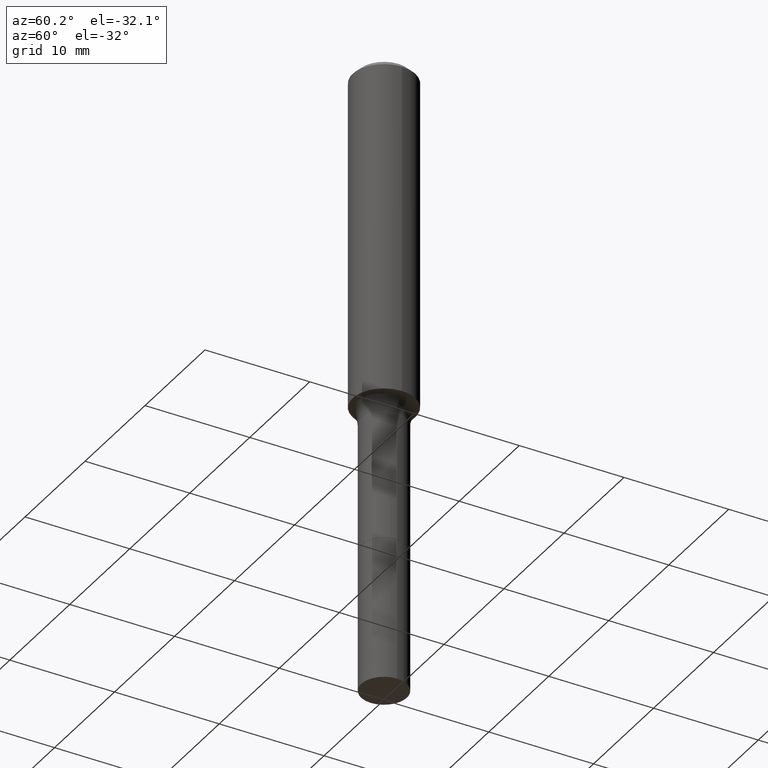
[diagram: clean part render]
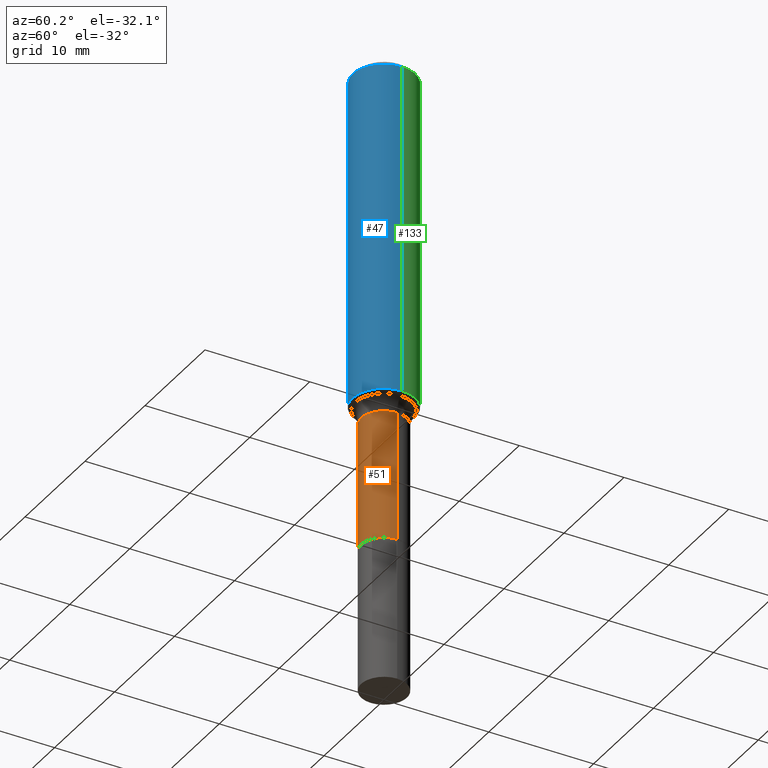
[diagram: same view with three faces highlighted in distinct colors, each labeled with its STEP entity id]
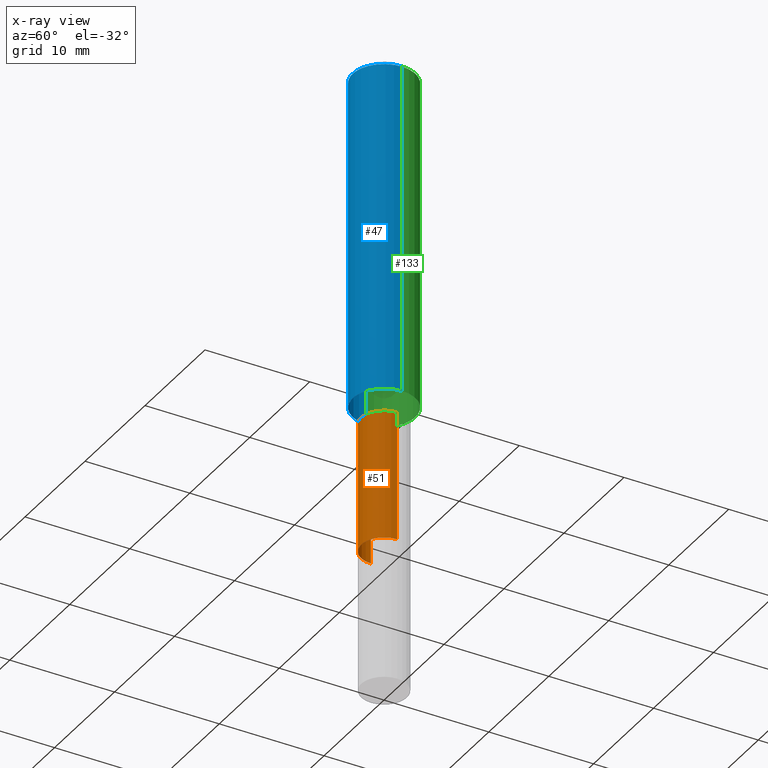
[diagram: x-ray of the same camera — body ghosted, the three highlighted faces saturated]
A machine part, auxiliary view with three faces highlighted in distinct colors.
The next image is the same camera in x-ray (body ghosted, the three faces saturated) — at least one of them is partly hidden behind the body in this view.
Their STEP definitions:

[orange] entity #51 — the highlighted cylindrical surface (edge-blend (fillet) strip) has radius 2.1831 mm, axis along (-0, 0, 1).
#2 = CYLINDRICAL_SURFACE ( 'NONE', #323, 0.08594999999999995699 ) ;
#8 = DIRECTION ( 'NONE',  ( 1.000000000000000000, -6.982962677686266711E-15, 0.000000000000000000 ) ) ;
#22 = ORIENTED_EDGE ( 'NONE', *, *, #395, .F. ) ;
#36 = CARTESIAN_POINT ( 'NONE',  ( -0.08594999999999998475, -4.912637422597106570E-15, -1.825700000000000101 ) ) ;
#48 = DIRECTION ( 'NONE',  ( -2.445468806185136597E-29, 3.491481338843145583E-15, 1.000000000000000000 ) ) ;
#51 = ADVANCED_FACE ( 'NONE', ( #197 ), #2, .T. ) ;
#56 = EDGE_LOOP ( 'NONE', ( #22, #382, #345, #153 ) ) ;
#60 = DIRECTION ( 'NONE',  ( -2.445468806185136597E-29, 3.491481338843145583E-15, 1.000000000000000000 ) ) ;
#88 = DIRECTION ( 'NONE',  ( -2.445468806185136597E-29, 3.491481338843145583E-15, 1.000000000000000000 ) ) ;
#92 = CARTESIAN_POINT ( 'NONE',  ( 0.08594999999999992923, -5.272485969787030971E-15, -1.338200000000000056 ) ) ;
#115 = CARTESIAN_POINT ( 'NONE',  ( 0.000000000000000000, 0.000000000000000000, 0.000000000000000000 ) ) ;
#147 = CARTESIAN_POINT ( 'NONE',  ( -0.08594999999999995699, 6.107114813858058042E-16, -4.227824710074089488E-30 ) ) ;
#153 = ORIENTED_EDGE ( 'NONE', *, *, #482, .F. ) ;
#157 = EDGE_CURVE ( 'NONE', #388, #301, #390, .T. ) ;
#169 = CARTESIAN_POINT ( 'NONE',  ( 0.08594999999999998475, -6.974583122473064793E-15, -1.825700000000000101 ) ) ;
#180 = DIRECTION ( 'NONE',  ( -2.445468806185136877E-29, 3.491481338843145188E-15, 1.000000000000000000 ) ) ;
#197 = FACE_OUTER_BOUND ( 'NONE', #56, .T. ) ;
#222 = CARTESIAN_POINT ( 'NONE',  ( -0.08594999999999992923, -4.912637422597108147E-15, -1.338200000000000056 ) ) ;
#231 = AXIS2_PLACEMENT_3D ( 'NONE', #333, #60, #8 ) ;
#233 = DIRECTION ( 'NONE',  ( -2.445468806185136877E-29, 3.491481338843145188E-15, 1.000000000000000000 ) ) ;
#242 = DIRECTION ( 'NONE',  ( 1.000000000000000000, -6.982962677686261977E-15, 0.000000000000000000 ) ) ;
#257 = VERTEX_POINT ( 'NONE', #222 ) ;
#262 = LINE ( 'NONE', #147, #434 ) ;
#266 = CIRCLE ( 'NONE', #231, 0.08594999999999992923 ) ;
#271 = VERTEX_POINT ( 'NONE', #92 ) ;
#301 = VERTEX_POINT ( 'NONE', #169 ) ;
#310 = CARTESIAN_POINT ( 'NONE',  ( 0.08594999999999995699, -6.001856421471342262E-16, 4.191073938796604437E-30 ) ) ;
#315 = CARTESIAN_POINT ( 'NONE',  ( 4.464692399452204323E-29, -6.374397480325931355E-15, -1.825700000000000101 ) ) ;
#323 = AXIS2_PLACEMENT_3D ( 'NONE', #115, #88, #446 ) ;
#324 = AXIS2_PLACEMENT_3D ( 'NONE', #315, #48, #242 ) ;
#333 = CARTESIAN_POINT ( 'NONE',  ( 3.272526356436949336E-29, -4.672300327639896745E-15, -1.338200000000000056 ) ) ;
#345 = ORIENTED_EDGE ( 'NONE', *, *, #495, .T. ) ;
#372 = LINE ( 'NONE', #310, #466 ) ;
#382 = ORIENTED_EDGE ( 'NONE', *, *, #157, .T. ) ;
#388 = VERTEX_POINT ( 'NONE', #36 ) ;
#390 = CIRCLE ( 'NONE', #324, 0.08594999999999998475 ) ;
#395 = EDGE_CURVE ( 'NONE', #388, #257, #262, .T. ) ;
#434 = VECTOR ( 'NONE', #233, 39.37007874015748143 ) ;
#446 = DIRECTION ( 'NONE',  ( 1.000000000000000000, -6.982962677686265922E-15, 4.876176775795935232E-29 ) ) ;
#466 = VECTOR ( 'NONE', #180, 39.37007874015748143 ) ;
#482 = EDGE_CURVE ( 'NONE', #257, #271, #266, .T. ) ;
#495 = EDGE_CURVE ( 'NONE', #301, #271, #372, .T. ) ;

[blue] entity #47 — the highlighted cylindrical surface (edge-blend (fillet) strip) has radius 2.9997 mm, axis along (-0, 0, 1).
#7 = DIRECTION ( 'NONE',  ( -2.445468806185136597E-29, 3.491481338843145583E-15, 1.000000000000000000 ) ) ;
#15 = AXIS2_PLACEMENT_3D ( 'NONE', #95, #289, #412 ) ;
#20 = VERTEX_POINT ( 'NONE', #230 ) ;
#26 = ORIENTED_EDGE ( 'NONE', *, *, #354, .F. ) ;
#43 = CYLINDRICAL_SURFACE ( 'NONE', #275, 0.1181000000000000660 ) ;
#47 = ADVANCED_FACE ( 'NONE', ( #355 ), #43, .T. ) ;
#69 = CARTESIAN_POINT ( 'NONE',  ( -0.1181000000000000660, 8.391509709326787887E-16, -5.809262341591047287E-30 ) ) ;
#70 = VECTOR ( 'NONE', #216, 39.37007874015748143 ) ;
#94 = ORIENTED_EDGE ( 'NONE', *, *, #298, .T. ) ;
#95 = CARTESIAN_POINT ( 'NONE',  ( 5.776197320209328408E-31, -8.246878922347560526E-17, -0.02362000000000014435 ) ) ;
#110 = EDGE_LOOP ( 'NONE', ( #26, #94, #191, #113 ) ) ;
#113 = ORIENTED_EDGE ( 'NONE', *, *, #476, .F. ) ;
#123 = DIRECTION ( 'NONE',  ( 1.000000000000000000, -6.982962677686266711E-15, 4.876176775795936353E-29 ) ) ;
#141 = DIRECTION ( 'NONE',  ( -2.445468806185136597E-29, 3.491481338843145583E-15, 1.000000000000000000 ) ) ;
#182 = CARTESIAN_POINT ( 'NONE',  ( -0.1181000000000001493, -3.602748276562417844E-15, -1.272210507923510647 ) ) ;
#186 = DIRECTION ( 'NONE',  ( -2.445468806185136877E-29, 3.491481338843145188E-15, 1.000000000000000000 ) ) ;
#191 = ORIENTED_EDGE ( 'NONE', *, *, #493, .T. ) ;
#201 = AXIS2_PLACEMENT_3D ( 'NONE', #499, #141, #300 ) ;
#202 = CIRCLE ( 'NONE', #15, 0.1180999999999999966 ) ;
#216 = DIRECTION ( 'NONE',  ( -2.445468806185136877E-29, 3.491481338843145188E-15, 1.000000000000000000 ) ) ;
#226 = LINE ( 'NONE', #69, #380 ) ;
#229 = CARTESIAN_POINT ( 'NONE',  ( 0.1181000000000001493, -5.266587139729846670E-15, -1.272210507923510647 ) ) ;
#230 = CARTESIAN_POINT ( 'NONE',  ( -0.1180999999999999966, -1.423033047426606960E-15, -0.02362000000000014435 ) ) ;
#234 = VERTEX_POINT ( 'NONE', #415 ) ;
#275 = AXIS2_PLACEMENT_3D ( 'NONE', #361, #7, #123 ) ;
#282 = CIRCLE ( 'NONE', #201, 0.1181000000000001493 ) ;
#289 = DIRECTION ( 'NONE',  ( -2.445468806185136597E-29, 3.491481338843145583E-15, 1.000000000000000000 ) ) ;
#298 = EDGE_CURVE ( 'NONE', #349, #368, #282, .T. ) ;
#300 = DIRECTION ( 'NONE',  ( 1.000000000000000000, -6.982962677686264344E-15, 0.000000000000000000 ) ) ;
#326 = LINE ( 'NONE', #490, #70 ) ;
#349 = VERTEX_POINT ( 'NONE', #182 ) ;
#354 = EDGE_CURVE ( 'NONE', #349, #20, #226, .T. ) ;
#355 = FACE_OUTER_BOUND ( 'NONE', #110, .T. ) ;
#361 = CARTESIAN_POINT ( 'NONE',  ( 0.000000000000000000, 0.000000000000000000, 0.000000000000000000 ) ) ;
#368 = VERTEX_POINT ( 'NONE', #229 ) ;
#380 = VECTOR ( 'NONE', #186, 39.37007874015748143 ) ;
#412 = DIRECTION ( 'NONE',  ( 1.000000000000000000, -6.982962677686266711E-15, 0.000000000000000000 ) ) ;
#415 = CARTESIAN_POINT ( 'NONE',  ( 0.1180999999999999966, -9.071566814582237199E-16, -0.02362000000000014435 ) ) ;
#476 = EDGE_CURVE ( 'NONE', #20, #234, #202, .T. ) ;
#490 = CARTESIAN_POINT ( 'NONE',  ( 0.1181000000000000660, -8.246878922347485584E-16, 5.758764772215003944E-30 ) ) ;
#493 = EDGE_CURVE ( 'NONE', #368, #234, #326, .T. ) ;
#499 = CARTESIAN_POINT ( 'NONE',  ( 3.111151112027893846E-29, -4.441899247495096830E-15, -1.272210507923510647 ) ) ;

[green] entity #133 — the highlighted cylindrical surface (edge-blend (fillet) strip) has radius 2.9997 mm, axis along (-0, 0, 1).
#20 = VERTEX_POINT ( 'NONE', #230 ) ;
#67 = EDGE_CURVE ( 'NONE', #234, #20, #468, .T. ) ;
#69 = CARTESIAN_POINT ( 'NONE',  ( -0.1181000000000000660, 8.391509709326787887E-16, -5.809262341591047287E-30 ) ) ;
#70 = VECTOR ( 'NONE', #216, 39.37007874015748143 ) ;
#71 = ORIENTED_EDGE ( 'NONE', *, *, #194, .T. ) ;
#91 = CARTESIAN_POINT ( 'NONE',  ( 3.111151112027893846E-29, -4.441899247495096830E-15, -1.272210507923510647 ) ) ;
#120 = DIRECTION ( 'NONE',  ( -2.445468806185136597E-29, 3.491481338843145583E-15, 1.000000000000000000 ) ) ;
#122 = AXIS2_PLACEMENT_3D ( 'NONE', #91, #453, #130 ) ;
#130 = DIRECTION ( 'NONE',  ( 1.000000000000000000, -6.982962677686264344E-15, 0.000000000000000000 ) ) ;
#133 = ADVANCED_FACE ( 'NONE', ( #401 ), #487, .T. ) ;
#162 = DIRECTION ( 'NONE',  ( 1.000000000000000000, -6.982962677686266711E-15, 0.000000000000000000 ) ) ;
#164 = DIRECTION ( 'NONE',  ( -2.445468806185136597E-29, 3.491481338843145583E-15, 1.000000000000000000 ) ) ;
#182 = CARTESIAN_POINT ( 'NONE',  ( -0.1181000000000001493, -3.602748276562417844E-15, -1.272210507923510647 ) ) ;
#186 = DIRECTION ( 'NONE',  ( -2.445468806185136877E-29, 3.491481338843145188E-15, 1.000000000000000000 ) ) ;
#194 = EDGE_CURVE ( 'NONE', #368, #349, #418, .T. ) ;
#216 = DIRECTION ( 'NONE',  ( -2.445468806185136877E-29, 3.491481338843145188E-15, 1.000000000000000000 ) ) ;
#226 = LINE ( 'NONE', #69, #380 ) ;
#229 = CARTESIAN_POINT ( 'NONE',  ( 0.1181000000000001493, -5.266587139729846670E-15, -1.272210507923510647 ) ) ;
#230 = CARTESIAN_POINT ( 'NONE',  ( -0.1180999999999999966, -1.423033047426606960E-15, -0.02362000000000014435 ) ) ;
#234 = VERTEX_POINT ( 'NONE', #415 ) ;
#276 = ORIENTED_EDGE ( 'NONE', *, *, #67, .F. ) ;
#316 = CARTESIAN_POINT ( 'NONE',  ( 0.000000000000000000, 0.000000000000000000, 0.000000000000000000 ) ) ;
#326 = LINE ( 'NONE', #490, #70 ) ;
#347 = ORIENTED_EDGE ( 'NONE', *, *, #493, .F. ) ;
#349 = VERTEX_POINT ( 'NONE', #182 ) ;
#354 = EDGE_CURVE ( 'NONE', #349, #20, #226, .T. ) ;
#368 = VERTEX_POINT ( 'NONE', #229 ) ;
#380 = VECTOR ( 'NONE', #186, 39.37007874015748143 ) ;
#386 = ORIENTED_EDGE ( 'NONE', *, *, #354, .T. ) ;
#401 = FACE_OUTER_BOUND ( 'NONE', #416, .T. ) ;
#402 = DIRECTION ( 'NONE',  ( 1.000000000000000000, -6.982962677686266711E-15, 4.876176775795936353E-29 ) ) ;
#415 = CARTESIAN_POINT ( 'NONE',  ( 0.1180999999999999966, -9.071566814582237199E-16, -0.02362000000000014435 ) ) ;
#416 = EDGE_LOOP ( 'NONE', ( #71, #386, #276, #347 ) ) ;
#418 = CIRCLE ( 'NONE', #122, 0.1181000000000001493 ) ;
#444 = AXIS2_PLACEMENT_3D ( 'NONE', #447, #164, #162 ) ;
#447 = CARTESIAN_POINT ( 'NONE',  ( 5.776197320209328408E-31, -8.246878922347560526E-17, -0.02362000000000014435 ) ) ;
#453 = DIRECTION ( 'NONE',  ( -2.445468806185136597E-29, 3.491481338843145583E-15, 1.000000000000000000 ) ) ;
#468 = CIRCLE ( 'NONE', #444, 0.1180999999999999966 ) ;
#469 = AXIS2_PLACEMENT_3D ( 'NONE', #316, #120, #402 ) ;
#487 = CYLINDRICAL_SURFACE ( 'NONE', #469, 0.1181000000000000660 ) ;
#490 = CARTESIAN_POINT ( 'NONE',  ( 0.1181000000000000660, -8.246878922347485584E-16, 5.758764772215003944E-30 ) ) ;
#493 = EDGE_CURVE ( 'NONE', #368, #234, #326, .T. ) ;